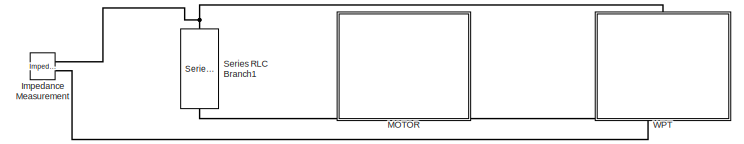
[diagram: root canvas - part 1/4, top center region]
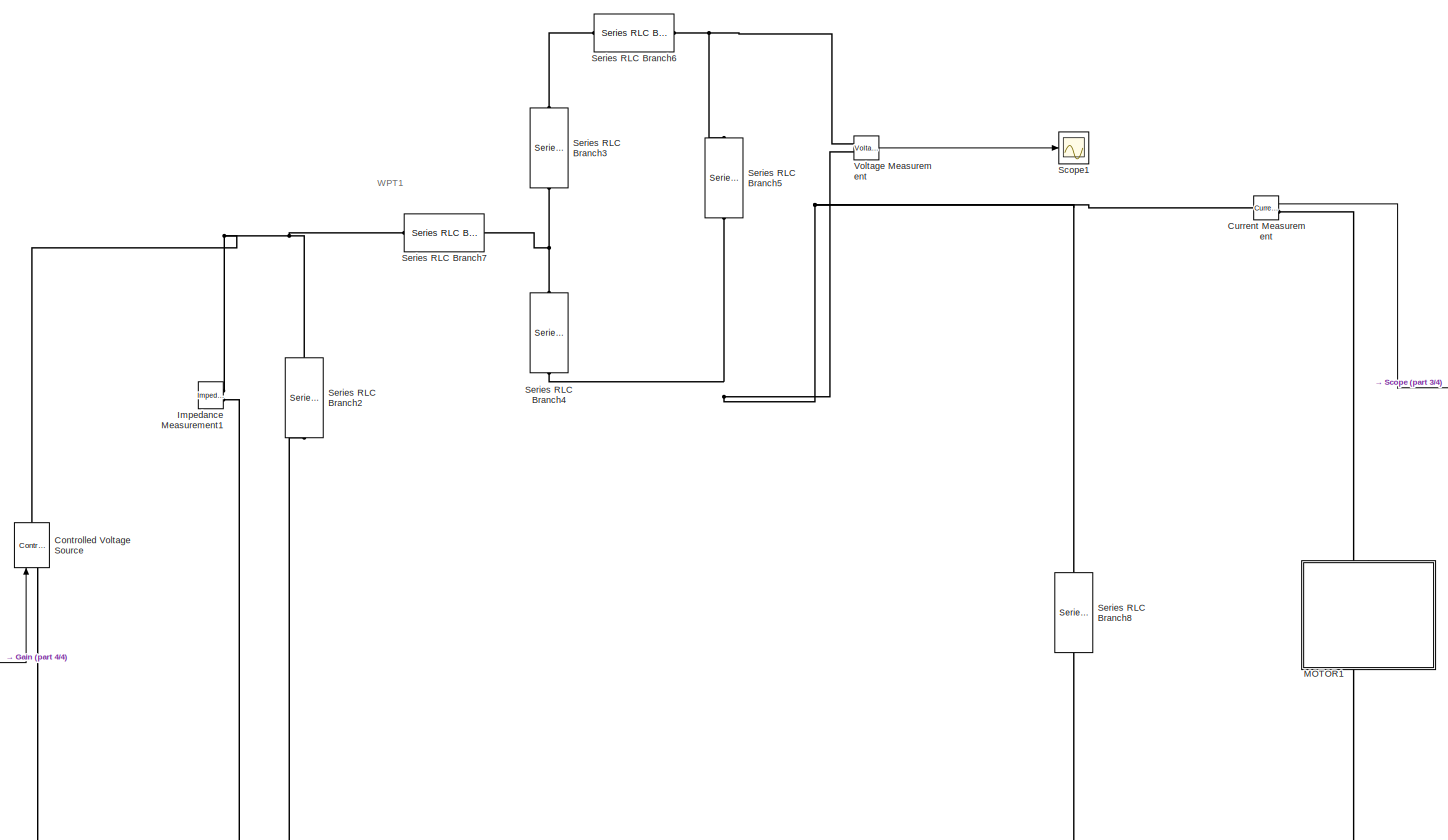
[diagram: root canvas - part 2/4, center side, full height]
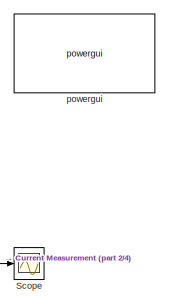
[diagram: root canvas - part 3/4, middle right region]
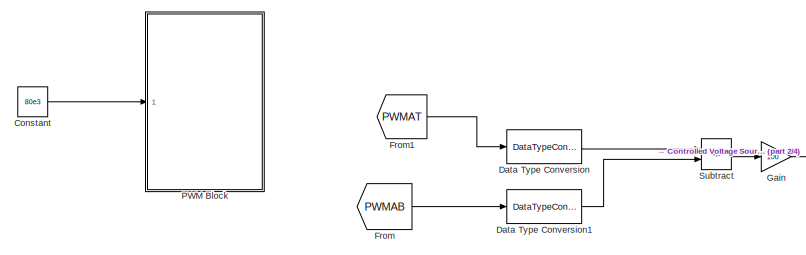
[diagram: root canvas - part 4/4, bottom left region]
MODEL slx_56af95c6a190
KIND model
CONFIG AbsTol = auto
CONFIG EnableMultiTasking = off
CONFIG FixedStep = SampleTime
CONFIG InitFcn = param\n\n\n
CONFIG MaxStep = auto
CONFIG MinStep = auto
CONFIG RelTol = 1e-3
CONFIG SampleTimeConstraint = Unconstrained
CONFIG SolverName = FixedStepDiscrete
CONFIG StartTime = 0.0
CONFIG StopTime = Tfinal
BLOCK [Constant] Constant
  Value = 80e3
BLOCK [Reference] Controlled Voltage Source  REF=spsControlledVoltageSourceLib/Controlled Voltage Source
  Ports = [1, 0, 0, 0, 0, 1, 1]
  SourceBlock = spsControlledVoltageSourceLib/Controlled Voltage Source
  SourceProductBaseCode = PS
  SourceType = Controlled Voltage Source
BLOCK [Reference] Current Measurement  REF=spsCurrentMeasurementLib/Current Measurement
  Ports = [0, 1, 0, 0, 0, 1, 1]
  SourceBlock = spsCurrentMeasurementLib/Current Measurement
  SourceProductBaseCode = PS
  SourceType = Current Measurement
  UserDataPersistent = on
BLOCK [DataTypeConversion] Data Type Conversion
  RndMeth = Floor
  SaturateOnIntegerOverflow = off
BLOCK [DataTypeConversion] Data Type Conversion1
  RndMeth = Floor
  SaturateOnIntegerOverflow = off
BLOCK [From] From
  GotoTag = PWMAB
  TagVisibility = global
BLOCK [From] From1
  GotoTag = PWMAT
  TagVisibility = global
BLOCK [Gain] Gain
  Gain = 100
BLOCK [Reference] Impedance Measurement  REF=spsImpedanceMeasurementLib/Impedance Measurement
  Commented = on
  NameLocation = top
  Ports = [0, 0, 0, 0, 0, 2]
  SourceBlock = spsImpedanceMeasurementLib/Impedance Measurement
  SourceProductBaseCode = PS
  SourceType = Impedance Measurement
BLOCK [Reference] Impedance Measurement1  REF=spsImpedanceMeasurementLib/Impedance Measurement
  NameLocation = top
  Ports = [0, 0, 0, 0, 0, 2]
  SourceBlock = spsImpedanceMeasurementLib/Impedance Measurement
  SourceProductBaseCode = PS
  SourceType = Impedance Measurement
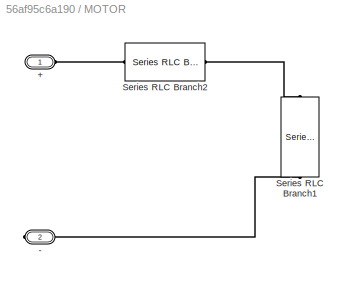
BLOCK [SubSystem] MOTOR
  Commented = on
  NameLocation = left
  Ports = [0, 0, 0, 0, 0, 1, 1]
  RequestExecContextInheritance = off
BLOCK [PMIOPort] MOTOR/+
  Side = Left
BLOCK [PMIOPort] MOTOR/-
  Port = 2
  Side = Right
BLOCK [Reference] MOTOR/Series RLC Branch1  REF=spsSeriesRLCBranchLib/Series RLC Branch
  NameLocation = left
  Ports = [0, 0, 0, 0, 0, 1, 1]
  SourceBlock = spsSeriesRLCBranchLib/Series RLC Branch
  SourceProductBaseCode = PS
  SourceType = Series RLC Branch
BLOCK [Reference] MOTOR/Series RLC Branch2  REF=spsSeriesRLCBranchLib/Series RLC Branch
  Ports = [0, 0, 0, 0, 0, 1, 1]
  SourceBlock = spsSeriesRLCBranchLib/Series RLC Branch
  SourceProductBaseCode = PS
  SourceType = Series RLC Branch
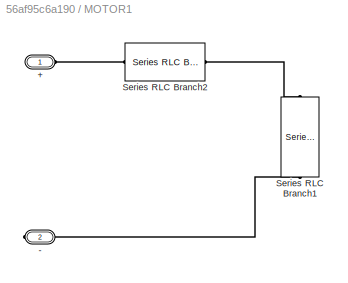
BLOCK [SubSystem] MOTOR1
  NameLocation = left
  Ports = [0, 0, 0, 0, 0, 1, 1]
  RequestExecContextInheritance = off
BLOCK [PMIOPort] MOTOR1/+
  Side = Left
BLOCK [PMIOPort] MOTOR1/-
  Port = 2
  Side = Right
BLOCK [Reference] MOTOR1/Series RLC Branch1  REF=spsSeriesRLCBranchLib/Series RLC Branch
  NameLocation = left
  Ports = [0, 0, 0, 0, 0, 1, 1]
  SourceBlock = spsSeriesRLCBranchLib/Series RLC Branch
  SourceProductBaseCode = PS
  SourceType = Series RLC Branch
BLOCK [Reference] MOTOR1/Series RLC Branch2  REF=spsSeriesRLCBranchLib/Series RLC Branch
  Ports = [0, 0, 0, 0, 0, 1, 1]
  SourceBlock = spsSeriesRLCBranchLib/Series RLC Branch
  SourceProductBaseCode = PS
  SourceType = Series RLC Branch
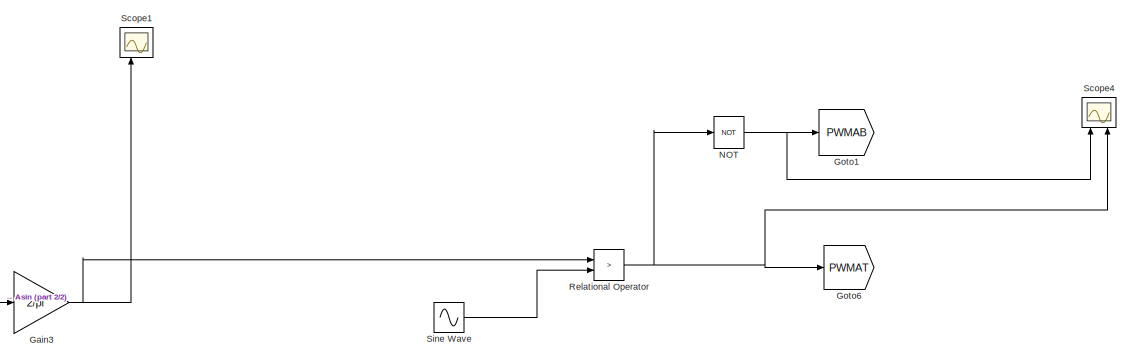
[diagram: PWM Block - part 1/2, right side, full height]
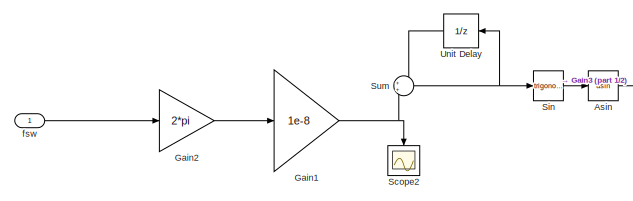
[diagram: PWM Block - part 2/2, bottom left region]
BLOCK [SubSystem] PWM Block
  Ports = [1]
  RequestExecContextInheritance = off
BLOCK [Trigonometry] PWM Block/Asin
  Operator = asin
  Ports = [1, 1]
BLOCK [Gain] PWM Block/Gain1
  Gain = 1e-8
BLOCK [Gain] PWM Block/Gain2
  Gain = 2*pi
BLOCK [Gain] PWM Block/Gain3
  Gain = 2/pi
BLOCK [Goto] PWM Block/Goto1
  GotoTag = PWMAB
  TagVisibility = global
BLOCK [Goto] PWM Block/Goto6
  GotoTag = PWMAT
  TagVisibility = global
BLOCK [Logic] PWM Block/NOT
  AllPortsSameDT = off
  IconShape = distinctive
  Operator = NOT
  OutDataTypeStr = boolean
  Ports = [1, 1]
BLOCK [RelationalOperator] PWM Block/Relational Operator
  InputSameDT = off
  Operator = >
  OutDataTypeStr = boolean
  Ports = [2, 1]
  RndMeth = Simplest
BLOCK [Scope] PWM Block/Scope1
  Floating = off
  NameLocation = right
  NumInputPorts = 2
  Ports = [2]
  ScopeSpecificationString = Simulink.scopes.TimeScopeBlockCfg('CurrentConfiguration', extmgr.ConfigurationSet(extmgr.Configuration('Core','General UI',true),extmgr.Configuration('Core','Source UI',true),extmgr.Configuration('Sources','WiredSimulink',true,'DataLoggingVariableName','ScopeData3'),extmgr.Configuration('Visuals','Time Domain',true,'SerializedDisplays',{struct('MinYLimReal','-1.03717','MaxYLimReal','1.09427','YLab...<+1426ch>
BLOCK [Scope] PWM Block/Scope2
  Floating = off
  NameLocation = left
  NumInputPorts = 1
  Ports = [1]
  ScopeSpecificationString = Simulink.scopes.TimeScopeBlockCfg('CurrentConfiguration', extmgr.ConfigurationSet(extmgr.Configuration('Core','General UI',true),extmgr.Configuration('Core','Source UI',true),extmgr.Configuration('Sources','WiredSimulink',true,'DataLoggingVariableName','ScopeData1'),extmgr.Configuration('Visuals','Time Domain',true),extmgr.Configuration('Tools','Plot Navigation',true),extmgr.Configuration('Tools',...<+40ch>
BLOCK [Scope] PWM Block/Scope4
  Floating = off
  NameLocation = right
  NumInputPorts = 3
  Ports = [3]
  ScopeSpecificationString = Simulink.scopes.TimeScopeBlockCfg('CurrentConfiguration', extmgr.ConfigurationSet(extmgr.Configuration('Core','General UI',true),extmgr.Configuration('Core','Source UI',true),extmgr.Configuration('Sources','WiredSimulink',true,'DataLoggingVariableName','ScopeData2'),extmgr.Configuration('Visuals','Time Domain',true,'SerializedDisplays',{struct('MinYLimReal','-0.17342','MaxYLimReal','1.10785','YLab...<+1450ch>
BLOCK [Trigonometry] PWM Block/Sin
  Ports = [1, 1]
BLOCK [Sin] PWM Block/Sine Wave
  Amplitude = 0.8
  Frequency = 50*2*pi
  Ports = [0, 1]
  SampleTime = 0
BLOCK [Sum] PWM Block/Sum
  Ports = [2, 1]
BLOCK [UnitDelay] PWM Block/Unit Delay
  HasFrameUpgradeWarning = on
  NameLocation = top
  SampleTime = -1
BLOCK [Inport] PWM Block/fsw
BLOCK [Scope] Scope
  Floating = off
  NumInputPorts = 1
  Ports = [1]
  ScopeSpecificationString = Simulink.scopes.TimeScopeBlockCfg('CurrentConfiguration', extmgr.ConfigurationSet(extmgr.Configuration('Core','General UI',true),extmgr.Configuration('Core','Source UI',true),extmgr.Configuration('Sources','WiredSimulink',true,'DataLoggingVariableName','ScopeData1'),extmgr.Configuration('Visuals','Time Domain',true,'SerializedDisplays',{struct('MinYLimReal','-6.43319','MaxYLimReal','6.28176','YLab...<+1378ch>
BLOCK [Scope] Scope1
  Floating = off
  NumInputPorts = 1
  Ports = [1]
  ScopeSpecificationString = Simulink.scopes.TimeScopeBlockCfg('CurrentConfiguration', extmgr.ConfigurationSet(extmgr.Configuration('Core','General UI',true),extmgr.Configuration('Core','Source UI',true),extmgr.Configuration('Sources','WiredSimulink',true,'DataLoggingVariableName','ScopeData2'),extmgr.Configuration('Visuals','Time Domain',true,'SerializedDisplays',{struct('MinYLimReal','-44.525','MaxYLimReal','43.92501','YLab...<+1433ch>
BLOCK [Reference] Series RLC Branch1  REF=spsSeriesRLCBranchLib/Series RLC Branch
  Commented = on
  NameLocation = left
  Ports = [0, 0, 0, 0, 0, 1, 1]
  SourceBlock = spsSeriesRLCBranchLib/Series RLC Branch
  SourceProductBaseCode = PS
  SourceType = Series RLC Branch
BLOCK [Reference] Series RLC Branch2  REF=spsSeriesRLCBranchLib/Series RLC Branch
  NameLocation = left
  Ports = [0, 0, 0, 0, 0, 1, 1]
  SourceBlock = spsSeriesRLCBranchLib/Series RLC Branch
  SourceProductBaseCode = PS
  SourceType = Series RLC Branch
BLOCK [Reference] Series RLC Branch3  REF=spsSeriesRLCBranchLib/Series RLC Branch
  NameLocation = right
  Ports = [0, 0, 0, 0, 0, 1, 1]
  SourceBlock = spsSeriesRLCBranchLib/Series RLC Branch
  SourceProductBaseCode = PS
  SourceType = Series RLC Branch
BLOCK [Reference] Series RLC Branch4  REF=spsSeriesRLCBranchLib/Series RLC Branch
  NameLocation = left
  Ports = [0, 0, 0, 0, 0, 1, 1]
  SourceBlock = spsSeriesRLCBranchLib/Series RLC Branch
  SourceProductBaseCode = PS
  SourceType = Series RLC Branch
BLOCK [Reference] Series RLC Branch5  REF=spsSeriesRLCBranchLib/Series RLC Branch
  NameLocation = left
  Ports = [0, 0, 0, 0, 0, 1, 1]
  SourceBlock = spsSeriesRLCBranchLib/Series RLC Branch
  SourceProductBaseCode = PS
  SourceType = Series RLC Branch
BLOCK [Reference] Series RLC Branch6  REF=spsSeriesRLCBranchLib/Series RLC Branch
  NameLocation = top
  Ports = [0, 0, 0, 0, 0, 1, 1]
  SourceBlock = spsSeriesRLCBranchLib/Series RLC Branch
  SourceProductBaseCode = PS
  SourceType = Series RLC Branch
BLOCK [Reference] Series RLC Branch7  REF=spsSeriesRLCBranchLib/Series RLC Branch
  Ports = [0, 0, 0, 0, 0, 1, 1]
  SourceBlock = spsSeriesRLCBranchLib/Series RLC Branch
  SourceProductBaseCode = PS
  SourceType = Series RLC Branch
BLOCK [Reference] Series RLC Branch8  REF=spsSeriesRLCBranchLib/Series RLC Branch
  NameLocation = right
  Ports = [0, 0, 0, 0, 0, 1, 1]
  SourceBlock = spsSeriesRLCBranchLib/Series RLC Branch
  SourceProductBaseCode = PS
  SourceType = Series RLC Branch
BLOCK [Sum] Subtract
  IconShape = rectangular
  Inputs = +-
  Ports = [2, 1]
BLOCK [Reference] Voltage Measurement  REF=spsVoltageMeasurementLib/Voltage Measurement
  Ports = [0, 1, 0, 0, 0, 2]
  SourceBlock = spsVoltageMeasurementLib/Voltage Measurement
  SourceProductBaseCode = PS
  SourceType = Voltage Measurement
  UserDataPersistent = on
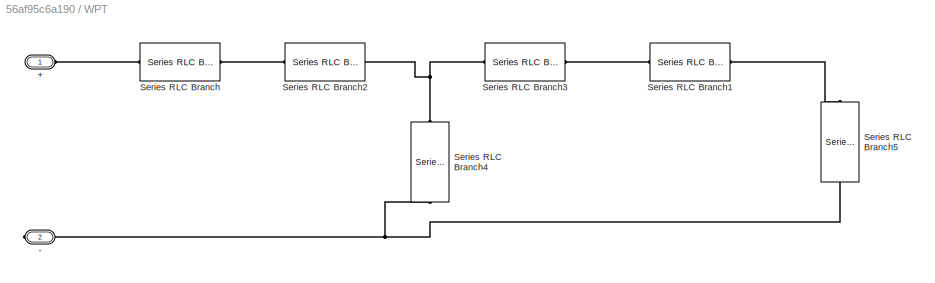
BLOCK [SubSystem] WPT
  Commented = on
  NameLocation = left
  Ports = [0, 0, 0, 0, 0, 1, 1]
  RequestExecContextInheritance = off
BLOCK [PMIOPort] WPT/+
  Side = Left
BLOCK [PMIOPort] WPT/-
  Port = 2
  Side = Right
BLOCK [Reference] WPT/Series RLC Branch  REF=spsSeriesRLCBranchLib/Series RLC Branch
  Ports = [0, 0, 0, 0, 0, 1, 1]
  SourceBlock = spsSeriesRLCBranchLib/Series RLC Branch
  SourceProductBaseCode = PS
  SourceType = Series RLC Branch
BLOCK [Reference] WPT/Series RLC Branch1  REF=spsSeriesRLCBranchLib/Series RLC Branch
  NameLocation = top
  Ports = [0, 0, 0, 0, 0, 1, 1]
  SourceBlock = spsSeriesRLCBranchLib/Series RLC Branch
  SourceProductBaseCode = PS
  SourceType = Series RLC Branch
BLOCK [Reference] WPT/Series RLC Branch2  REF=spsSeriesRLCBranchLib/Series RLC Branch
  Ports = [0, 0, 0, 0, 0, 1, 1]
  SourceBlock = spsSeriesRLCBranchLib/Series RLC Branch
  SourceProductBaseCode = PS
  SourceType = Series RLC Branch
BLOCK [Reference] WPT/Series RLC Branch3  REF=spsSeriesRLCBranchLib/Series RLC Branch
  Ports = [0, 0, 0, 0, 0, 1, 1]
  SourceBlock = spsSeriesRLCBranchLib/Series RLC Branch
  SourceProductBaseCode = PS
  SourceType = Series RLC Branch
BLOCK [Reference] WPT/Series RLC Branch4  REF=spsSeriesRLCBranchLib/Series RLC Branch
  NameLocation = left
  Ports = [0, 0, 0, 0, 0, 1, 1]
  SourceBlock = spsSeriesRLCBranchLib/Series RLC Branch
  SourceProductBaseCode = PS
  SourceType = Series RLC Branch
BLOCK [Reference] WPT/Series RLC Branch5  REF=spsSeriesRLCBranchLib/Series RLC Branch
  NameLocation = left
  Ports = [0, 0, 0, 0, 0, 1, 1]
  SourceBlock = spsSeriesRLCBranchLib/Series RLC Branch
  SourceProductBaseCode = PS
  SourceType = Series RLC Branch
BLOCK [Reference] powergui  REF=spspowerguiLib/powergui
  Ports = []
  Priority = 1
  SourceBlock = spspowerguiLib/powergui
  SourceProductBaseCode = PS
  SourceType = PSB option menu block
ANNOTATION (root): WPT1
LINE Constant:1 -> PWM Block:1
LINE Current Measurement:1 -> Scope:1
LINE Data Type Conversion1:1 -> Subtract:2
LINE Data Type Conversion:1 -> Subtract:1
LINE From1:1 -> Data Type Conversion:1
LINE From:1 -> Data Type Conversion1:1
LINE Gain:1 -> Controlled Voltage Source:1
LINE PWM Block/Asin:1 -> PWM Block/Gain3:1
NET PWM Block/Gain1:1 -> PWM Block/Scope2:1, PWM Block/Sum:2
LINE PWM Block/Gain2:1 -> PWM Block/Gain1:1
NET PWM Block/Gain3:1 -> PWM Block/Relational Operator:1, PWM Block/Scope1:1
NET PWM Block/NOT:1 -> PWM Block/Goto1:1, PWM Block/Scope4:1
NET PWM Block/Relational Operator:1 -> PWM Block/Goto6:1, PWM Block/NOT:1, PWM Block/Scope4:3
LINE PWM Block/Sin:1 -> PWM Block/Asin:1
LINE PWM Block/Sine Wave:1 -> PWM Block/Relational Operator:2
NET PWM Block/Sum:1 -> PWM Block/Sin:1, PWM Block/Unit Delay:1
LINE PWM Block/Unit Delay:1 -> PWM Block/Sum:1
LINE PWM Block/fsw:1 -> PWM Block/Gain2:1
LINE Subtract:1 -> Gain:1
LINE Voltage Measurement:1 -> Scope1:1
PNET net1: Controlled Voltage Source:LConn1 -- Impedance Measurement1:LConn2 -- MOTOR1:RConn1 -- Series RLC Branch2:RConn1 -- Series RLC Branch8:LConn1
PNET net2: Controlled Voltage Source:RConn1 -- Impedance Measurement1:LConn1 -- Series RLC Branch2:LConn1 -- Series RLC Branch7:LConn1
PNET net3: Current Measurement:LConn1 -- Series RLC Branch4:RConn1 -- Series RLC Branch5:RConn1 -- Series RLC Branch8:RConn1 -- Voltage Measurement:LConn2
PLINE Current Measurement:RConn1 -- MOTOR1:LConn1
PNET net4: Impedance Measurement:LConn1 -- Series RLC Branch1:LConn1 -- WPT:LConn1
PNET net5: Impedance Measurement:LConn2 -- Series RLC Branch1:RConn1 -- WPT:RConn1
PLINE MOTOR/+:RConn1 -- MOTOR/Series RLC Branch2:LConn1
PLINE MOTOR/-:RConn1 -- MOTOR/Series RLC Branch1:RConn1
PLINE MOTOR/Series RLC Branch1:LConn1 -- MOTOR/Series RLC Branch2:RConn1
PLINE MOTOR1/+:RConn1 -- MOTOR1/Series RLC Branch2:LConn1
PLINE MOTOR1/-:RConn1 -- MOTOR1/Series RLC Branch1:RConn1
PLINE MOTOR1/Series RLC Branch1:LConn1 -- MOTOR1/Series RLC Branch2:RConn1
PNET net6: Series RLC Branch3:LConn1 -- Series RLC Branch4:LConn1 -- Series RLC Branch7:RConn1
PLINE Series RLC Branch3:RConn1 -- Series RLC Branch6:RConn1
PNET net7: Series RLC Branch5:LConn1 -- Series RLC Branch6:LConn1 -- Voltage Measurement:LConn1
PLINE WPT/+:RConn1 -- WPT/Series RLC Branch:LConn1
PNET net8: WPT/-:RConn1 -- WPT/Series RLC Branch4:RConn1 -- WPT/Series RLC Branch5:RConn1
PLINE WPT/Series RLC Branch1:LConn1 -- WPT/Series RLC Branch5:LConn1
PLINE WPT/Series RLC Branch1:RConn1 -- WPT/Series RLC Branch3:RConn1
PLINE WPT/Series RLC Branch2:LConn1 -- WPT/Series RLC Branch:RConn1
PNET net9: WPT/Series RLC Branch2:RConn1 -- WPT/Series RLC Branch3:LConn1 -- WPT/Series RLC Branch4:LConn1
note: NET lines group one-source signal fan-out (src -> all destinations, sorted); 1:1 wires keep LINE; PNET lines group multi-terminal physical nets as a canonical sorted terminal list (undirected conserving connections); 2-terminal nets keep the pairwise PLINE form
